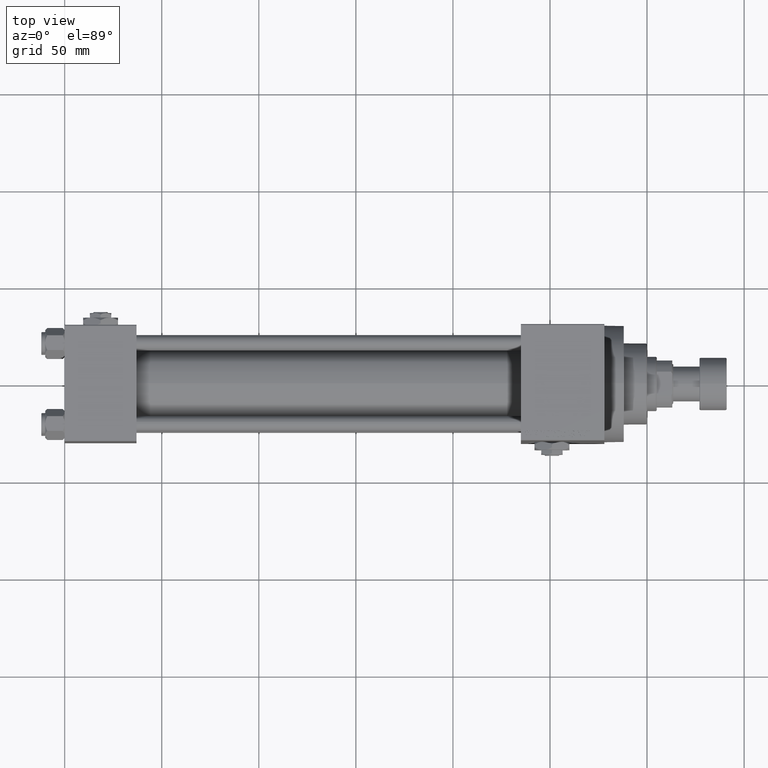
[diagram: clean part render]
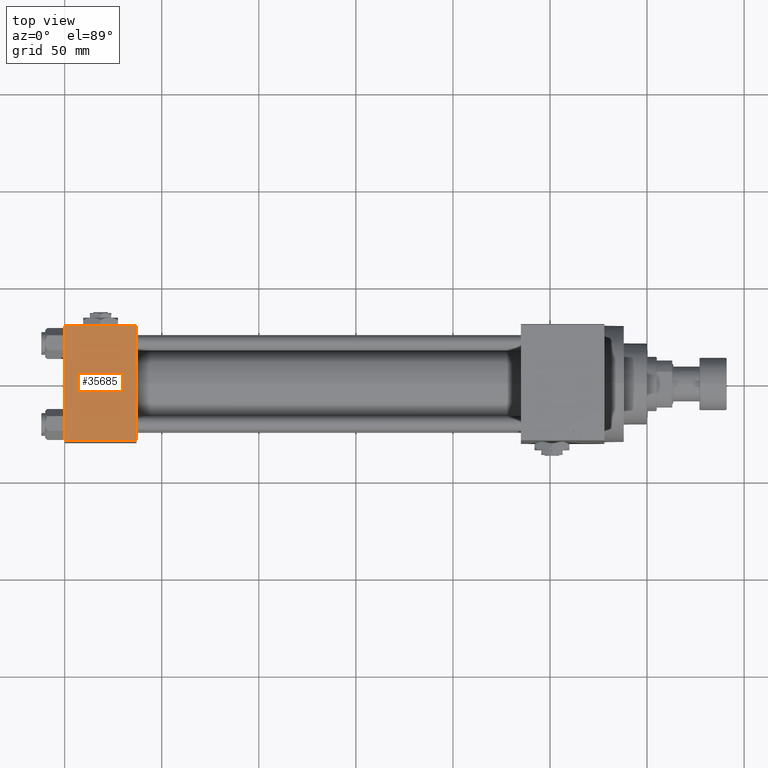
[diagram: same view with one face highlighted and labeled with its STEP entity id]
A machine part, top view. The second image highlights one B-rep face of the part: STEP entity #35685.
In plain terms, the highlighted planar face has unit normal (0, 0, -1).
Its self-contained STEP definition (entity closure, byte-faithful):
#1446 = EDGE_CURVE ( 'NONE', #2775, #19065, #21595, .T. ) ;
#2775 = VERTEX_POINT ( 'NONE', #7494 ) ;
#3294 = EDGE_CURVE ( 'NONE', #5189, #2775, #26862, .T. ) ;
#3350 = CARTESIAN_POINT ( 'NONE',  ( 37.00000000000000000, -29.50000000000000000, 29.99999999999999289 ) ) ;
#4866 = DIRECTION ( 'NONE',  ( 0.000000000000000000, 1.000000000000000000, 1.156482317317871725E-16 ) ) ;
#5189 = VERTEX_POINT ( 'NONE', #37128 ) ;
#6570 = CARTESIAN_POINT ( 'NONE',  ( 37.00000000000000000, -29.49999999999998579, 29.99999999999999289 ) ) ;
#7494 = CARTESIAN_POINT ( 'NONE',  ( 0.000000000000000000, -29.49999999999998579, 29.99999999999999289 ) ) ;
#8611 = FACE_OUTER_BOUND ( 'NONE', #44839, .T. ) ;
#8739 = LINE ( 'NONE', #32248, #10336 ) ;
#10336 = VECTOR ( 'NONE', #40007, 1000.000000000000000 ) ;
#16365 = CARTESIAN_POINT ( 'NONE',  ( 37.00000000000000000, 29.99999999999999289, 30.00000000000000000 ) ) ;
#18061 = ORIENTED_EDGE ( 'NONE', *, *, #1446, .T. ) ;
#19065 = VERTEX_POINT ( 'NONE', #6570 ) ;
#20087 = CARTESIAN_POINT ( 'NONE',  ( 37.00000000000000000, 29.99999999999999289, 30.00000000000000000 ) ) ;
#20126 = PLANE ( 'NONE',  #25587 ) ;
#21595 = LINE ( 'NONE', #3350, #31150 ) ;
#21849 = DIRECTION ( 'NONE',  ( 1.000000000000000000, 0.000000000000000000, 0.000000000000000000 ) ) ;
#23864 = DIRECTION ( 'NONE',  ( 0.000000000000000000, 1.156482317317871725E-16, -1.000000000000000000 ) ) ;
#25587 = AXIS2_PLACEMENT_3D ( 'NONE', #16365, #23864, #4866 ) ;
#26862 = LINE ( 'NONE', #37896, #29482 ) ;
#27334 = ORIENTED_EDGE ( 'NONE', *, *, #41221, .T. ) ;
#29395 = ORIENTED_EDGE ( 'NONE', *, *, #41991, .F. ) ;
#29482 = VECTOR ( 'NONE', #42150, 1000.000000000000000 ) ;
#30381 = VECTOR ( 'NONE', #31590, 1000.000000000000000 ) ;
#31150 = VECTOR ( 'NONE', #21849, 1000.000000000000000 ) ;
#31590 = DIRECTION ( 'NONE',  ( 0.000000000000000000, -1.000000000000000000, -1.156482317317871725E-16 ) ) ;
#32248 = CARTESIAN_POINT ( 'NONE',  ( 0.000000000000000000, 29.49999999999999289, 30.00000000000000000 ) ) ;
#35165 = ORIENTED_EDGE ( 'NONE', *, *, #3294, .T. ) ;
#35348 = LINE ( 'NONE', #20087, #30381 ) ;
#35685 = ADVANCED_FACE ( 'NONE', ( #8611 ), #20126, .F. ) ;
#37128 = CARTESIAN_POINT ( 'NONE',  ( 0.000000000000000000, 29.49999999999999289, 30.00000000000000000 ) ) ;
#37608 = CARTESIAN_POINT ( 'NONE',  ( 37.00000000000000000, 29.49999999999999289, 30.00000000000000000 ) ) ;
#37896 = CARTESIAN_POINT ( 'NONE',  ( 0.000000000000000000, 29.99999999999999289, 30.00000000000000000 ) ) ;
#40007 = DIRECTION ( 'NONE',  ( -1.000000000000000000, 0.000000000000000000, 0.000000000000000000 ) ) ;
#41221 = EDGE_CURVE ( 'NONE', #48105, #5189, #8739, .T. ) ;
#41991 = EDGE_CURVE ( 'NONE', #48105, #19065, #35348, .T. ) ;
#42150 = DIRECTION ( 'NONE',  ( 0.000000000000000000, -1.000000000000000000, -1.156482317317871725E-16 ) ) ;
#44839 = EDGE_LOOP ( 'NONE', ( #35165, #18061, #29395, #27334 ) ) ;
#48105 = VERTEX_POINT ( 'NONE', #37608 ) ;